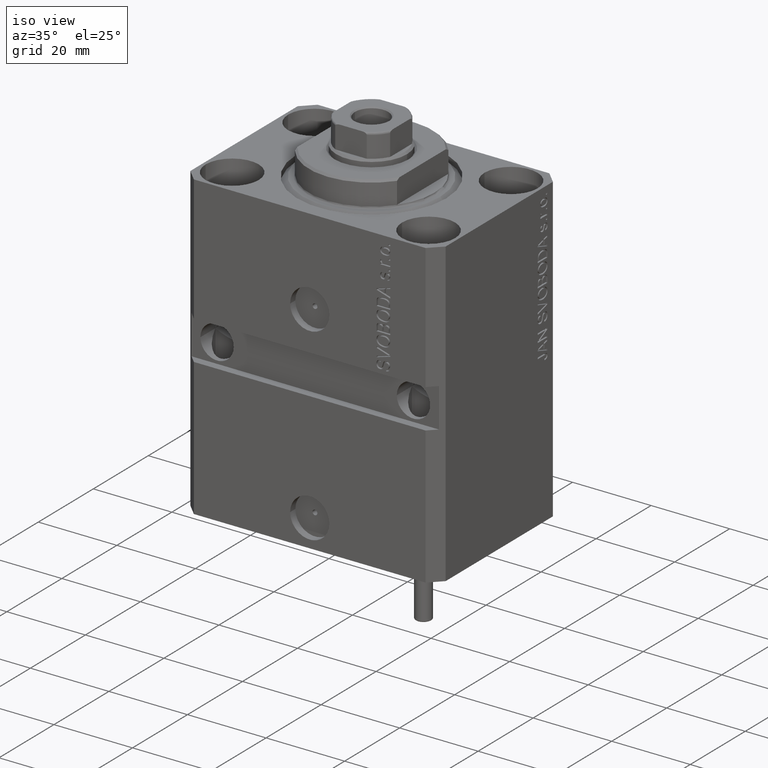
[diagram: clean part render]
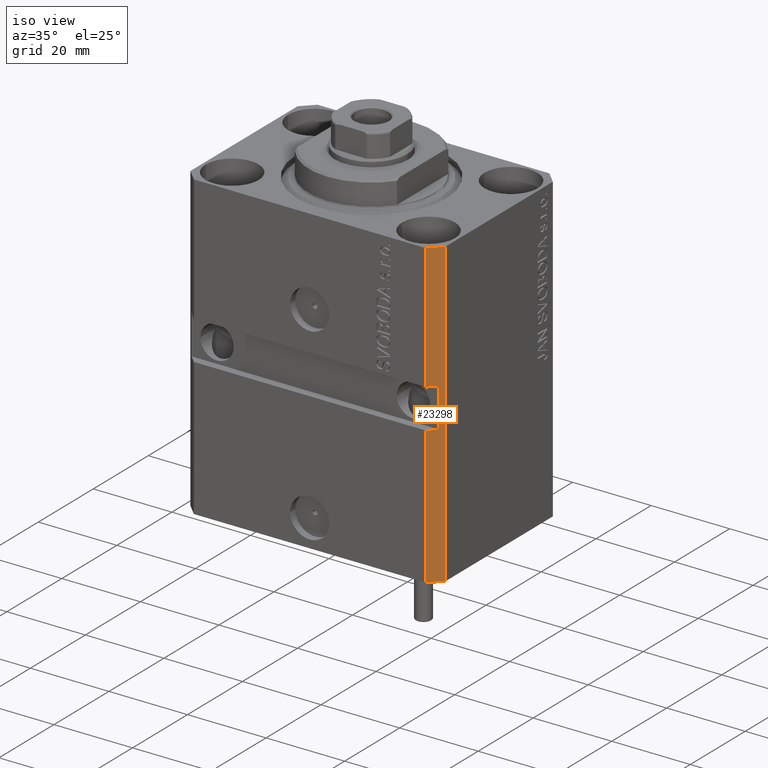
[diagram: same view with one face highlighted and labeled with its STEP entity id]
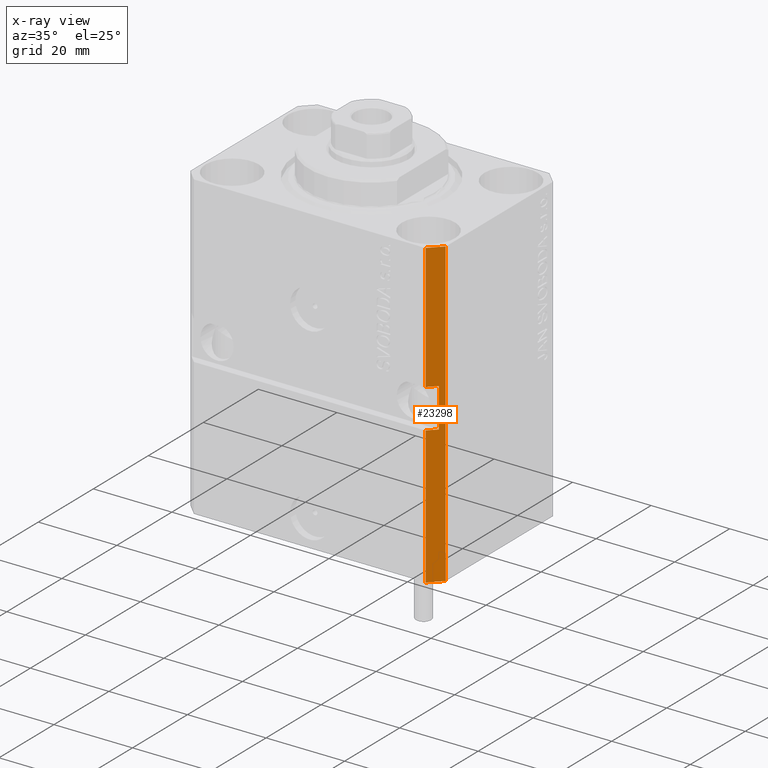
[diagram: x-ray of the same camera — body ghosted, the highlighted face saturated]
A machine part, iso view. The second image highlights one B-rep face of the part: STEP entity #23298.
The next image is the same camera in x-ray: the body ghosted, the highlighted face saturated — about 0% of this face is hidden behind the body in this view.
In plain terms, the highlighted planar face has unit normal (0.7071, -0.7071, 0).
Its self-contained STEP definition (entity closure, byte-faithful):
#380 = EDGE_CURVE ( 'NONE', #17610, #679, #39787, .T. ) ;
#679 = VERTEX_POINT ( 'NONE', #32003 ) ;
#3239 = EDGE_LOOP ( 'NONE', ( #8343, #5744, #31993, #8248, #34120, #38717, #3876, #24159 ) ) ;
#3864 = LINE ( 'NONE', #40705, #9604 ) ;
#3876 = ORIENTED_EDGE ( 'NONE', *, *, #380, .F. ) ;
#4119 = DIRECTION ( 'NONE',  ( 0.000000000000000000, 0.000000000000000000, 1.000000000000000000 ) ) ;
#4254 = EDGE_CURVE ( 'NONE', #9317, #13558, #26677, .T. ) ;
#4391 = VECTOR ( 'NONE', #13697, 1000.000000000000000 ) ;
#5744 = ORIENTED_EDGE ( 'NONE', *, *, #4254, .F. ) ;
#5760 = CARTESIAN_POINT ( 'NONE',  ( 32.49999999999651124, -19.49999999999949196, -77.00000000000000000 ) ) ;
#7159 = VERTEX_POINT ( 'NONE', #45702 ) ;
#8248 = ORIENTED_EDGE ( 'NONE', *, *, #15237, .T. ) ;
#8343 = ORIENTED_EDGE ( 'NONE', *, *, #12906, .F. ) ;
#8437 = VECTOR ( 'NONE', #38416, 1000.000000000000000 ) ;
#9317 = VERTEX_POINT ( 'NONE', #30212 ) ;
#9604 = VECTOR ( 'NONE', #10898, 1000.000000000000000 ) ;
#10898 = DIRECTION ( 'NONE',  ( 0.7071067811865483499, 0.7071067811865466846, 0.000000000000000000 ) ) ;
#12906 = EDGE_CURVE ( 'NONE', #13558, #34350, #13121, .T. ) ;
#13121 = LINE ( 'NONE', #38797, #16124 ) ;
#13183 = LINE ( 'NONE', #46396, #26031 ) ;
#13558 = VERTEX_POINT ( 'NONE', #25552 ) ;
#13697 = DIRECTION ( 'NONE',  ( 0.000000000000000000, 0.000000000000000000, -1.000000000000000000 ) ) ;
#13867 = VECTOR ( 'NONE', #4119, 1000.000000000000000 ) ;
#14713 = PLANE ( 'NONE',  #19934 ) ;
#14749 = VERTEX_POINT ( 'NONE', #39110 ) ;
#15237 = EDGE_CURVE ( 'NONE', #46950, #14749, #41683, .T. ) ;
#15724 = CARTESIAN_POINT ( 'NONE',  ( 31.49999999999650413, -20.49999999999949196, -41.99999999999998579 ) ) ;
#16124 = VECTOR ( 'NONE', #31783, 1000.000000000000000 ) ;
#17286 = CARTESIAN_POINT ( 'NONE',  ( 31.49999999999651124, -20.49999999999949196, -32.00000000000000711 ) ) ;
#17610 = VERTEX_POINT ( 'NONE', #17286 ) ;
#18589 = DIRECTION ( 'NONE',  ( 0.7071067811865466846, -0.7071067811865483499, 0.000000000000000000 ) ) ;
#19769 = LINE ( 'NONE', #34557, #8437 ) ;
#19934 = AXIS2_PLACEMENT_3D ( 'NONE', #39925, #18589, #40637 ) ;
#21603 = CARTESIAN_POINT ( 'NONE',  ( 29.49999999999650768, -22.49999999999948841, -32.00000000000000711 ) ) ;
#22179 = EDGE_CURVE ( 'NONE', #17610, #34350, #35279, .T. ) ;
#22797 = DIRECTION ( 'NONE',  ( 0.000000000000000000, 0.000000000000000000, 1.000000000000000000 ) ) ;
#23298 = ADVANCED_FACE ( 'NONE', ( #44265 ), #14713, .T. ) ;
#23680 = EDGE_CURVE ( 'NONE', #679, #7159, #13183, .T. ) ;
#24159 = ORIENTED_EDGE ( 'NONE', *, *, #22179, .T. ) ;
#25552 = CARTESIAN_POINT ( 'NONE',  ( 29.49999999999650058, -22.49999999999949196, -41.99999999999998579 ) ) ;
#26031 = VECTOR ( 'NONE', #39096, 1000.000000000000000 ) ;
#26677 = LINE ( 'NONE', #37582, #37487 ) ;
#30212 = CARTESIAN_POINT ( 'NONE',  ( 29.49999999999650413, -22.49999999999949196, -77.00000000000000000 ) ) ;
#30370 = EDGE_CURVE ( 'NONE', #9317, #46950, #19769, .T. ) ;
#31783 = DIRECTION ( 'NONE',  ( 0.7071067811865483499, 0.7071067811865466846, 7.548521435980509068E-17 ) ) ;
#31993 = ORIENTED_EDGE ( 'NONE', *, *, #30370, .T. ) ;
#32003 = CARTESIAN_POINT ( 'NONE',  ( 29.49999999999650413, -22.49999999999949196, -32.00000000000000711 ) ) ;
#34120 = ORIENTED_EDGE ( 'NONE', *, *, #45589, .F. ) ;
#34350 = VERTEX_POINT ( 'NONE', #15724 ) ;
#34557 = CARTESIAN_POINT ( 'NONE',  ( 29.49999999999650413, -22.49999999999949196, -77.00000000000000000 ) ) ;
#35156 = VECTOR ( 'NONE', #44370, 1000.000000000000000 ) ;
#35279 = LINE ( 'NONE', #35989, #4391 ) ;
#35989 = CARTESIAN_POINT ( 'NONE',  ( 31.49999999999651124, -20.49999999999949551, -77.00000000000000000 ) ) ;
#37312 = CARTESIAN_POINT ( 'NONE',  ( 32.49999999999651124, -19.49999999999949196, -77.00000000000000000 ) ) ;
#37487 = VECTOR ( 'NONE', #22797, 1000.000000000000000 ) ;
#37582 = CARTESIAN_POINT ( 'NONE',  ( 29.49999999999650413, -22.49999999999949196, -77.00000000000000000 ) ) ;
#38416 = DIRECTION ( 'NONE',  ( 0.7071067811865483499, 0.7071067811865466846, 0.000000000000000000 ) ) ;
#38717 = ORIENTED_EDGE ( 'NONE', *, *, #23680, .F. ) ;
#38797 = CARTESIAN_POINT ( 'NONE',  ( 29.49999999999650058, -22.49999999999949551, -41.99999999999998579 ) ) ;
#39096 = DIRECTION ( 'NONE',  ( 0.000000000000000000, 0.000000000000000000, 1.000000000000000000 ) ) ;
#39110 = CARTESIAN_POINT ( 'NONE',  ( 32.49999999999651124, -19.49999999999949196, 0.000000000000000000 ) ) ;
#39787 = LINE ( 'NONE', #21603, #35156 ) ;
#39925 = CARTESIAN_POINT ( 'NONE',  ( 29.49999999999650413, -22.49999999999949196, -77.00000000000000000 ) ) ;
#40637 = DIRECTION ( 'NONE',  ( 0.7071067811865483499, 0.7071067811865466846, 0.000000000000000000 ) ) ;
#40705 = CARTESIAN_POINT ( 'NONE',  ( 29.49999999999650413, -22.49999999999949196, 0.000000000000000000 ) ) ;
#41683 = LINE ( 'NONE', #37312, #13867 ) ;
#44265 = FACE_OUTER_BOUND ( 'NONE', #3239, .T. ) ;
#44370 = DIRECTION ( 'NONE',  ( -0.7071067811865483499, -0.7071067811865466846, 7.548521435980509068E-17 ) ) ;
#45589 = EDGE_CURVE ( 'NONE', #7159, #14749, #3864, .T. ) ;
#45702 = CARTESIAN_POINT ( 'NONE',  ( 29.49999999999650413, -22.49999999999949196, 0.000000000000000000 ) ) ;
#46396 = CARTESIAN_POINT ( 'NONE',  ( 29.49999999999650413, -22.49999999999949196, -77.00000000000000000 ) ) ;
#46950 = VERTEX_POINT ( 'NONE', #5760 ) ;